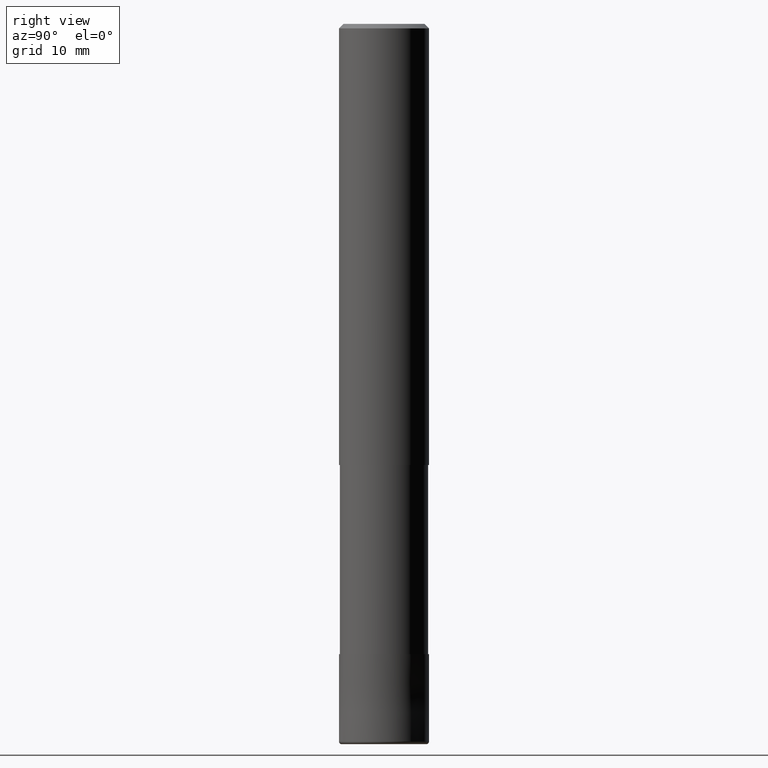
[diagram: clean part render]
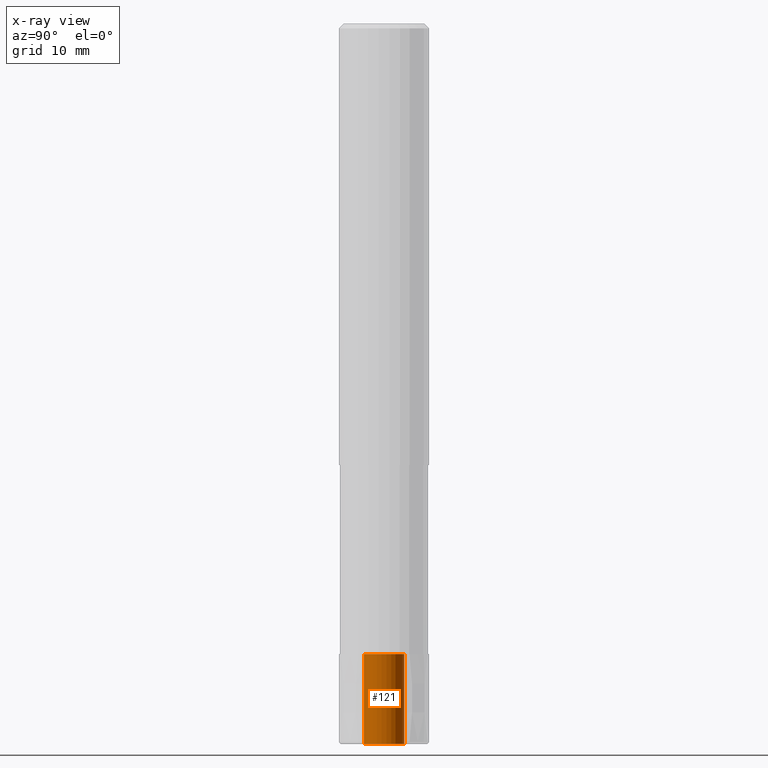
[diagram: x-ray — body ghosted, one internal face saturated and labeled with its STEP entity id]
A machine part, right view, then the same camera in x-ray: the body is ghosted and one INTERNAL B-rep face — a face not visible from any outside direction — is saturated and labeled: STEP entity #121.
In plain terms, the highlighted cylindrical surface (edge-blend (fillet) strip) has radius 2.25 mm, axis along (-0, -0, 1).
Its self-contained STEP definition (entity closure, byte-faithful):
#121=ADVANCED_FACE('',(#310),#311,.F.);
#131=VERTEX_POINT('',#322);
#145=EDGE_CURVE('',#155,#199,#340,.T.);
#151=EDGE_CURVE('',#199,#267,#349,.T.);
#155=VERTEX_POINT('',#353);
#161=EDGE_CURVE('',#267,#131,#359,.T.);
#199=VERTEX_POINT('',#402);
#261=EDGE_CURVE('',#155,#131,#471,.T.);
#267=VERTEX_POINT('',#477);
#310=FACE_OUTER_BOUND('',#514,.T.);
#311=CYLINDRICAL_SURFACE('',#515,2.25);
#322=CARTESIAN_POINT('',(2.75536429610035E-016,-2.25,-70.0));
#340=LINE('',#548,#549);
#349=CIRCLE('',#559,2.25);
#353=CARTESIAN_POINT('',(0.0,2.25,-70.0));
#359=LINE('',#574,#575);
#402=CARTESIAN_POINT('',(0.0,2.25,-80.0));
#471=CIRCLE('',#716,2.25);
#477=CARTESIAN_POINT('',(2.75536429610035E-016,-2.25,-80.0));
#514=EDGE_LOOP('',(#759,#760,#761,#762));
#515=AXIS2_PLACEMENT_3D('',#763,#764,#765);
#548=CARTESIAN_POINT('',(-2.75536429610035E-016,2.25,-75.0));
#549=VECTOR('',#800,1.0);
#559=AXIS2_PLACEMENT_3D('',#817,#818,#819);
#574=CARTESIAN_POINT('',(2.75536429610035E-016,-2.25,-75.0));
#575=VECTOR('',#822,1.0);
#716=AXIS2_PLACEMENT_3D('',#967,#968,#969);
#759=ORIENTED_EDGE('',*,*,#145,.T.);
#760=ORIENTED_EDGE('',*,*,#151,.T.);
#761=ORIENTED_EDGE('',*,*,#161,.T.);
#762=ORIENTED_EDGE('',*,*,#261,.F.);
#763=CARTESIAN_POINT('',(0.0,0.0,-75.0));
#764=DIRECTION('',(-0.0,-0.0,1.0));
#765=DIRECTION('',(0.0,1.0,0.0));
#800=DIRECTION('',(0.0,-0.0,-1.0));
#817=CARTESIAN_POINT('',(0.0,0.0,-80.0));
#818=DIRECTION('',(0.0,0.0,-1.0));
#819=DIRECTION('',(0.0,1.0,0.0));
#822=DIRECTION('',(0.0,-0.0,1.0));
#967=CARTESIAN_POINT('',(0.0,0.0,-70.0));
#968=DIRECTION('',(0.0,0.0,-1.0));
#969=DIRECTION('',(0.0,1.0,0.0));